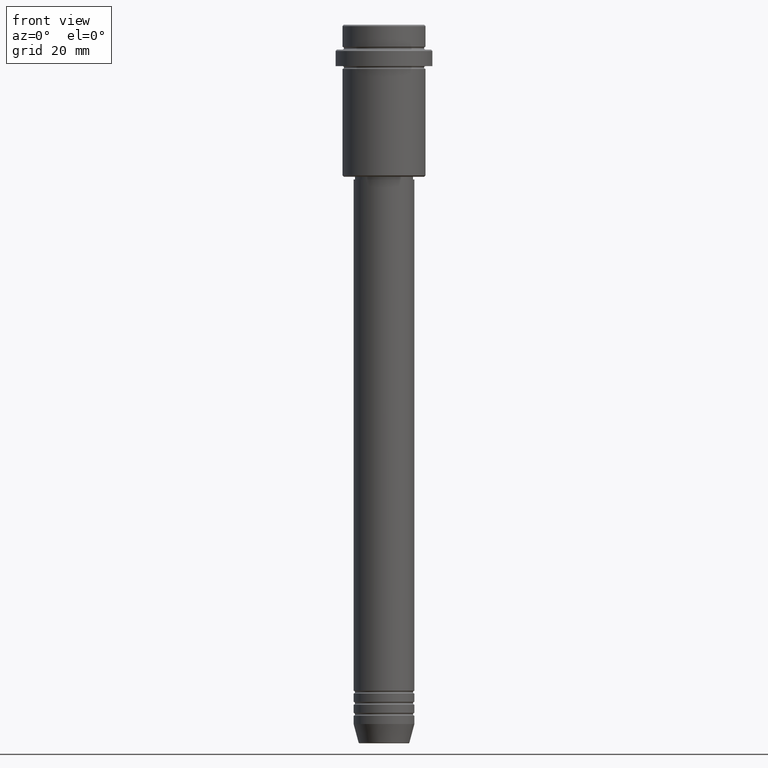
[diagram: clean part render]
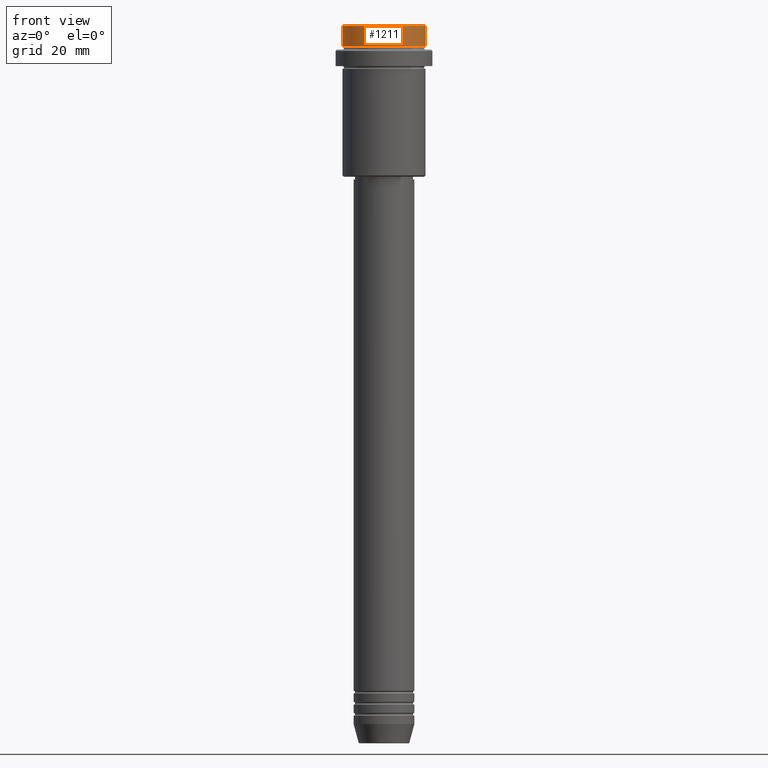
[diagram: same view with one face highlighted and labeled with its STEP entity id]
A machine part, front view. The second image highlights one B-rep face of the part: STEP entity #1211.
In plain terms, the highlighted cylindrical surface (partial cylindrical patch) has radius 15 mm, axis along (-0, -0, 1).
Its self-contained STEP definition (entity closure, byte-faithful):
#2 = CARTESIAN_POINT ( 'NONE',  ( 0.000000000000000000, 0.000000000000000000, -7.999999999999998224 ) ) ;
#83 = CARTESIAN_POINT ( 'NONE',  ( 15.00000000000000000, 0.000000000000000000, -7.999999999999998224 ) ) ;
#88 = CYLINDRICAL_SURFACE ( 'NONE', #1407, 15.00000000000000000 ) ;
#95 = CARTESIAN_POINT ( 'NONE',  ( 15.00000000000000000, 0.000000000000000000, -0.5000000000000108802 ) ) ;
#128 = CARTESIAN_POINT ( 'NONE',  ( -15.00000000000000000, 1.836970198721029589E-15, 0.000000000000000000 ) ) ;
#148 = CARTESIAN_POINT ( 'NONE',  ( -15.00000000000000000, 1.836970198721029589E-15, -7.999999999999998224 ) ) ;
#156 = ORIENTED_EDGE ( 'NONE', *, *, #326, .T. ) ;
#215 = VECTOR ( 'NONE', #1031, 1000.000000000000000 ) ;
#258 = CIRCLE ( 'NONE', #502, 15.00000000000000000 ) ;
#326 = EDGE_CURVE ( 'NONE', #344, #925, #258, .T. ) ;
#344 = VERTEX_POINT ( 'NONE', #95 ) ;
#365 = ORIENTED_EDGE ( 'NONE', *, *, #1351, .T. ) ;
#413 = FACE_OUTER_BOUND ( 'NONE', #1218, .T. ) ;
#461 = DIRECTION ( 'NONE',  ( -0.000000000000000000, -0.000000000000000000, 1.000000000000000000 ) ) ;
#502 = AXIS2_PLACEMENT_3D ( 'NONE', #1395, #1408, #746 ) ;
#512 = VERTEX_POINT ( 'NONE', #83 ) ;
#665 = LINE ( 'NONE', #1187, #738 ) ;
#672 = DIRECTION ( 'NONE',  ( 1.000000000000000000, 0.000000000000000000, 0.000000000000000000 ) ) ;
#729 = ORIENTED_EDGE ( 'NONE', *, *, #870, .F. ) ;
#738 = VECTOR ( 'NONE', #1106, 1000.000000000000000 ) ;
#746 = DIRECTION ( 'NONE',  ( 1.000000000000000000, 0.000000000000000000, 0.000000000000000000 ) ) ;
#771 = VERTEX_POINT ( 'NONE', #148 ) ;
#794 = DIRECTION ( 'NONE',  ( 1.000000000000000000, 0.000000000000000000, 0.000000000000000000 ) ) ;
#798 = LINE ( 'NONE', #128, #215 ) ;
#807 = ORIENTED_EDGE ( 'NONE', *, *, #1122, .T. ) ;
#841 = AXIS2_PLACEMENT_3D ( 'NONE', #2, #461, #794 ) ;
#866 = CIRCLE ( 'NONE', #841, 15.00000000000000000 ) ;
#870 = EDGE_CURVE ( 'NONE', #771, #925, #798, .T. ) ;
#879 = CARTESIAN_POINT ( 'NONE',  ( 0.000000000000000000, 0.000000000000000000, 0.000000000000000000 ) ) ;
#925 = VERTEX_POINT ( 'NONE', #1247 ) ;
#1031 = DIRECTION ( 'NONE',  ( -0.000000000000000000, -0.000000000000000000, 1.000000000000000000 ) ) ;
#1106 = DIRECTION ( 'NONE',  ( -0.000000000000000000, -0.000000000000000000, 1.000000000000000000 ) ) ;
#1122 = EDGE_CURVE ( 'NONE', #512, #344, #665, .T. ) ;
#1187 = CARTESIAN_POINT ( 'NONE',  ( 15.00000000000000000, 0.000000000000000000, 0.000000000000000000 ) ) ;
#1211 = ADVANCED_FACE ( 'NONE', ( #413 ), #88, .T. ) ;
#1218 = EDGE_LOOP ( 'NONE', ( #729, #365, #807, #156 ) ) ;
#1247 = CARTESIAN_POINT ( 'NONE',  ( -15.00000000000000000, 1.836970198721029589E-15, -0.5000000000000108802 ) ) ;
#1351 = EDGE_CURVE ( 'NONE', #771, #512, #866, .T. ) ;
#1391 = DIRECTION ( 'NONE',  ( -0.000000000000000000, -0.000000000000000000, 1.000000000000000000 ) ) ;
#1395 = CARTESIAN_POINT ( 'NONE',  ( 0.000000000000000000, 0.000000000000000000, -0.5000000000000108802 ) ) ;
#1407 = AXIS2_PLACEMENT_3D ( 'NONE', #879, #1391, #672 ) ;
#1408 = DIRECTION ( 'NONE',  ( 0.000000000000000000, 0.000000000000000000, -1.000000000000000000 ) ) ;